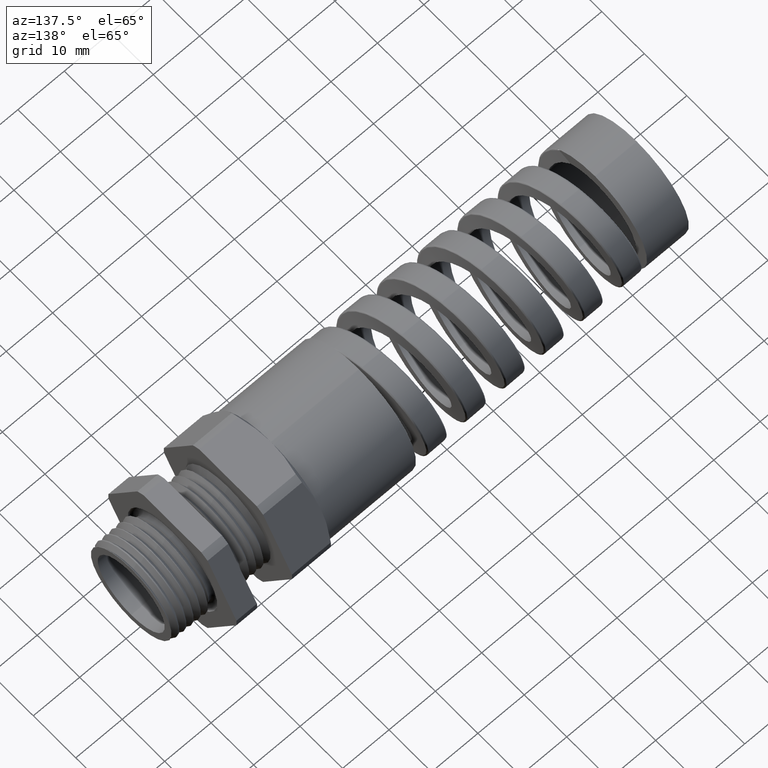
[diagram: clean part render]
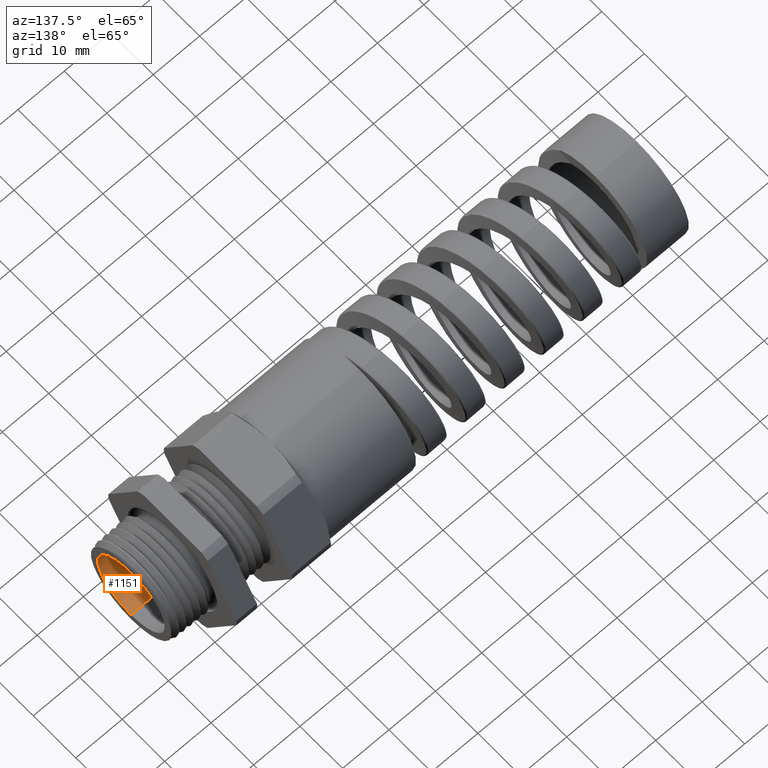
[diagram: same view with one face highlighted and labeled with its STEP entity id]
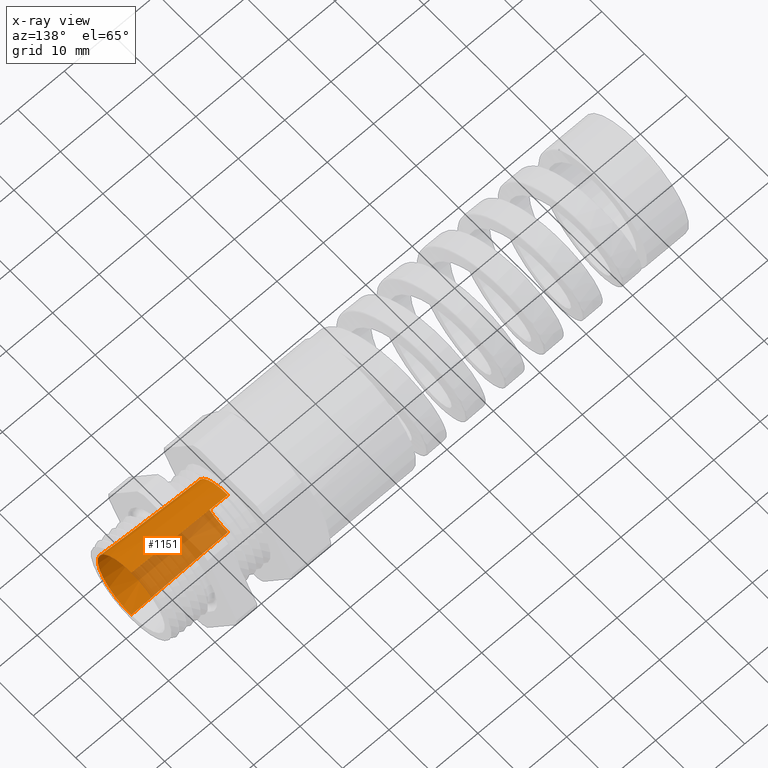
[diagram: x-ray of the same camera — body ghosted, the highlighted face saturated]
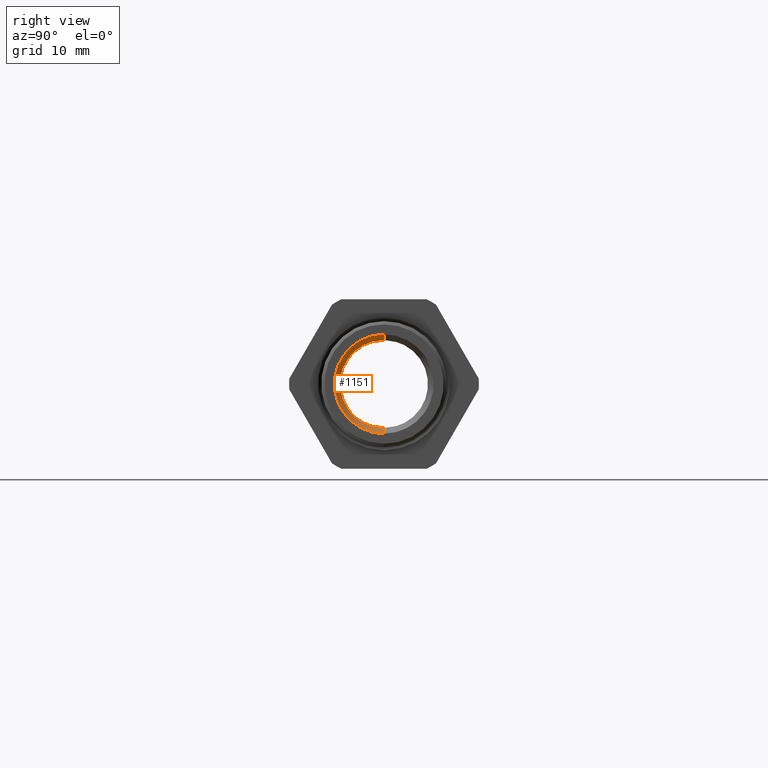
[diagram: same view with one face highlighted and labeled with its STEP entity id]
A machine part, auxiliary view. The second image highlights one B-rep face of the part: STEP entity #1151.
The next image is the same camera in x-ray: the body ghosted, the highlighted face saturated — about 36% of this face is hidden behind the body in this view.
A second angle (right view) of the same face is appended — the face is thin or edge-on in the first view.
In plain terms, the highlighted conical surface has half-angle 2.5 deg.
Its self-contained STEP definition (entity closure, byte-faithful):
#1097 = ORIENTED_EDGE ( 'NONE', *, *, #1098, .T. ) ;
#1098 = EDGE_CURVE ( 'NONE', #1099, #1100, #10132, .T. ) ;
#1099 = VERTEX_POINT ( 'NONE', #10127 ) ;
#1100 = VERTEX_POINT ( 'NONE', #10126 ) ;
#1101 = EDGE_CURVE ( 'NONE', #1100, #1102, #10125, .T. ) ;
#1102 = VERTEX_POINT ( 'NONE', #10121 ) ;
#1137 = ORIENTED_EDGE ( 'NONE', *, *, #1138, .F. ) ;
#1138 = EDGE_CURVE ( 'NONE', #1139, #1102, #10203, .T. ) ;
#1139 = VERTEX_POINT ( 'NONE', #10198 ) ;
#1140 = ORIENTED_EDGE ( 'NONE', *, *, #1141, .F. ) ;
#1141 = EDGE_CURVE ( 'NONE', #1099, #1139, #10197, .T. ) ;
#1151 = ADVANCED_FACE ( 'NONE', ( #10181 ), #7831, .F. ) ;
#1152 = EDGE_LOOP ( 'NONE', ( #1097, #1153, #1137, #1140 ) ) ;
#1153 = ORIENTED_EDGE ( 'NONE', *, *, #1101, .T. ) ;
#7826 = DIRECTION ( 'NONE',  ( 0.0000000000000000000, 0.0000000000000000000, -1.000000000000000000 ) ) ;
#7827 = DIRECTION ( 'NONE',  ( 1.000000000000000000, 0.0000000000000000000, 0.0000000000000000000 ) ) ;
#7828 = CARTESIAN_POINT ( 'NONE',  ( -0.4708333333333332700, 0.0000000000000000000, 0.0000000000000000000 ) ) ;
#7829 = AXIS2_PLACEMENT_3D ( 'NONE', #7828, #7827, #7826 ) ;
#7831 = CONICAL_SURFACE ( 'NONE', #7829, 0.2750000000000000200, 0.04363323129985837600 ) ;
#10121 = CARTESIAN_POINT ( 'NONE',  ( 0.3499999999999998100, 3.806671993246511900E-017, 0.3108383573040704500 ) ) ;
#10122 = DIRECTION ( 'NONE',  ( 0.9990482215818576900, 5.341834311772740200E-018, 0.04361938736533613900 ) ) ;
#10123 = VECTOR ( 'NONE', #10122, 39.37007874015748100 ) ;
#10124 = CARTESIAN_POINT ( 'NONE',  ( -0.4708333333333332700, 3.367778697655221900E-017, 0.2750000000000000200 ) ) ;
#10125 = LINE ( 'NONE', #10124, #10123 ) ;
#10126 = CARTESIAN_POINT ( 'NONE',  ( -0.4708333333333332700, 0.0000000000000000000, 0.2750000000000000200 ) ) ;
#10127 = CARTESIAN_POINT ( 'NONE',  ( -0.4708333333333332700, 3.367778697655221900E-017, -0.2750000000000000800 ) ) ;
#10128 = DIRECTION ( 'NONE',  ( 0.0000000000000000000, 0.0000000000000000000, 1.000000000000000000 ) ) ;
#10129 = DIRECTION ( 'NONE',  ( -1.000000000000000000, 0.0000000000000000000, 0.0000000000000000000 ) ) ;
#10130 = CARTESIAN_POINT ( 'NONE',  ( -0.4708333333333332700, 0.0000000000000000000, 0.0000000000000000000 ) ) ;
#10131 = AXIS2_PLACEMENT_3D ( 'NONE', #10130, #10129, #10128 ) ;
#10132 = CIRCLE ( 'NONE', #10131, 0.2750000000000000200 ) ;
#10181 = FACE_OUTER_BOUND ( 'NONE', #1152, .T. ) ;
#10194 = DIRECTION ( 'NONE',  ( 0.9990482215818576900, 0.0000000000000000000, -0.04361938736533613900 ) ) ;
#10195 = VECTOR ( 'NONE', #10194, 39.37007874015748100 ) ;
#10196 = CARTESIAN_POINT ( 'NONE',  ( -0.4708333333333332700, 0.0000000000000000000, -0.2750000000000000200 ) ) ;
#10197 = LINE ( 'NONE', #10196, #10195 ) ;
#10198 = CARTESIAN_POINT ( 'NONE',  ( 0.3499999999999998100, 0.0000000000000000000, -0.3108383573040704500 ) ) ;
#10199 = DIRECTION ( 'NONE',  ( 0.0000000000000000000, 0.0000000000000000000, 1.000000000000000000 ) ) ;
#10200 = DIRECTION ( 'NONE',  ( -1.000000000000000000, 0.0000000000000000000, 0.0000000000000000000 ) ) ;
#10201 = CARTESIAN_POINT ( 'NONE',  ( 0.3499999999999998100, 0.0000000000000000000, 0.0000000000000000000 ) ) ;
#10202 = AXIS2_PLACEMENT_3D ( 'NONE', #10201, #10200, #10199 ) ;
#10203 = CIRCLE ( 'NONE', #10202, 0.3108383573040704500 ) ;